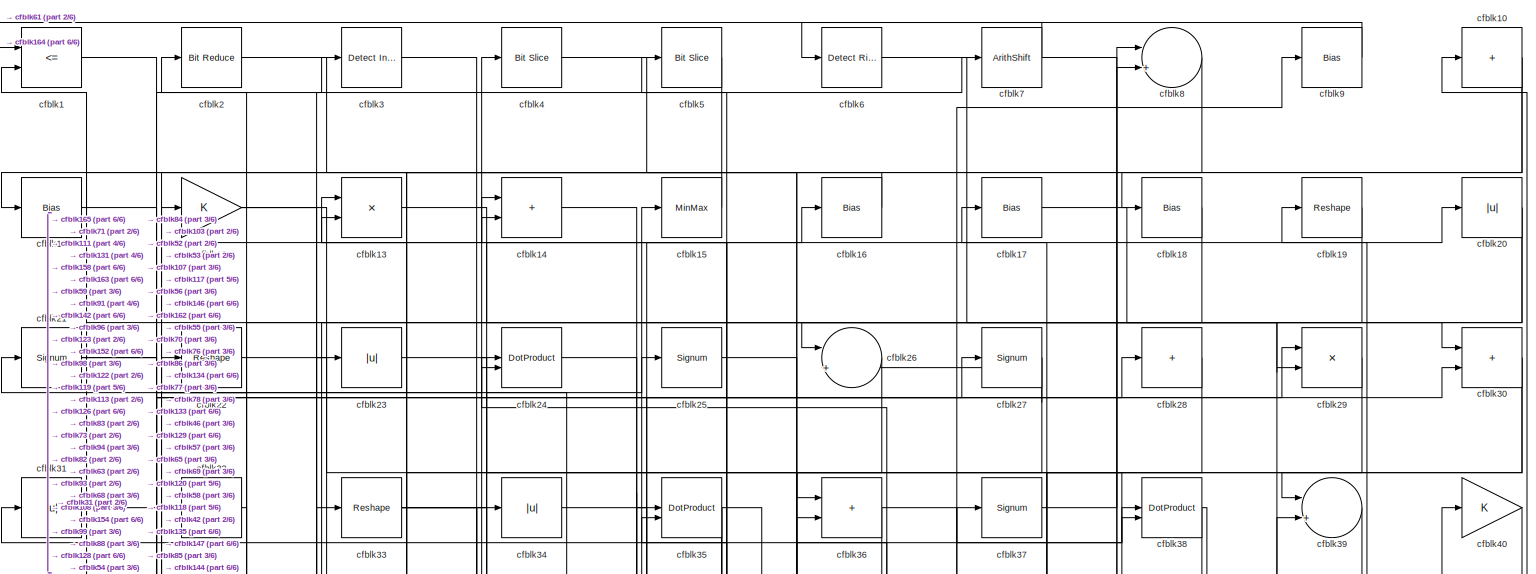
[diagram: root canvas - part 1/6, full width, top band]
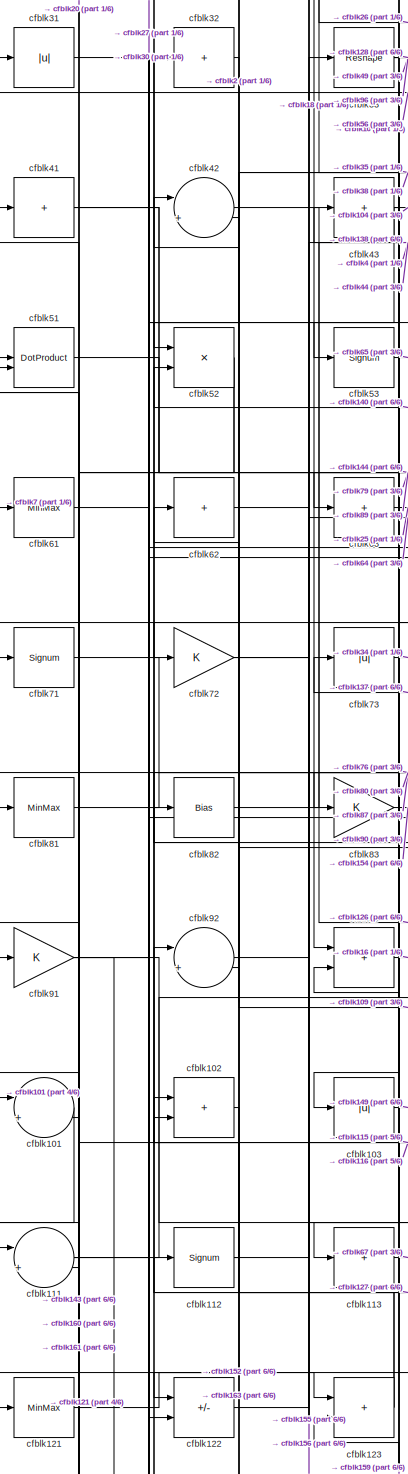
[diagram: root canvas - part 2/6, middle left region]
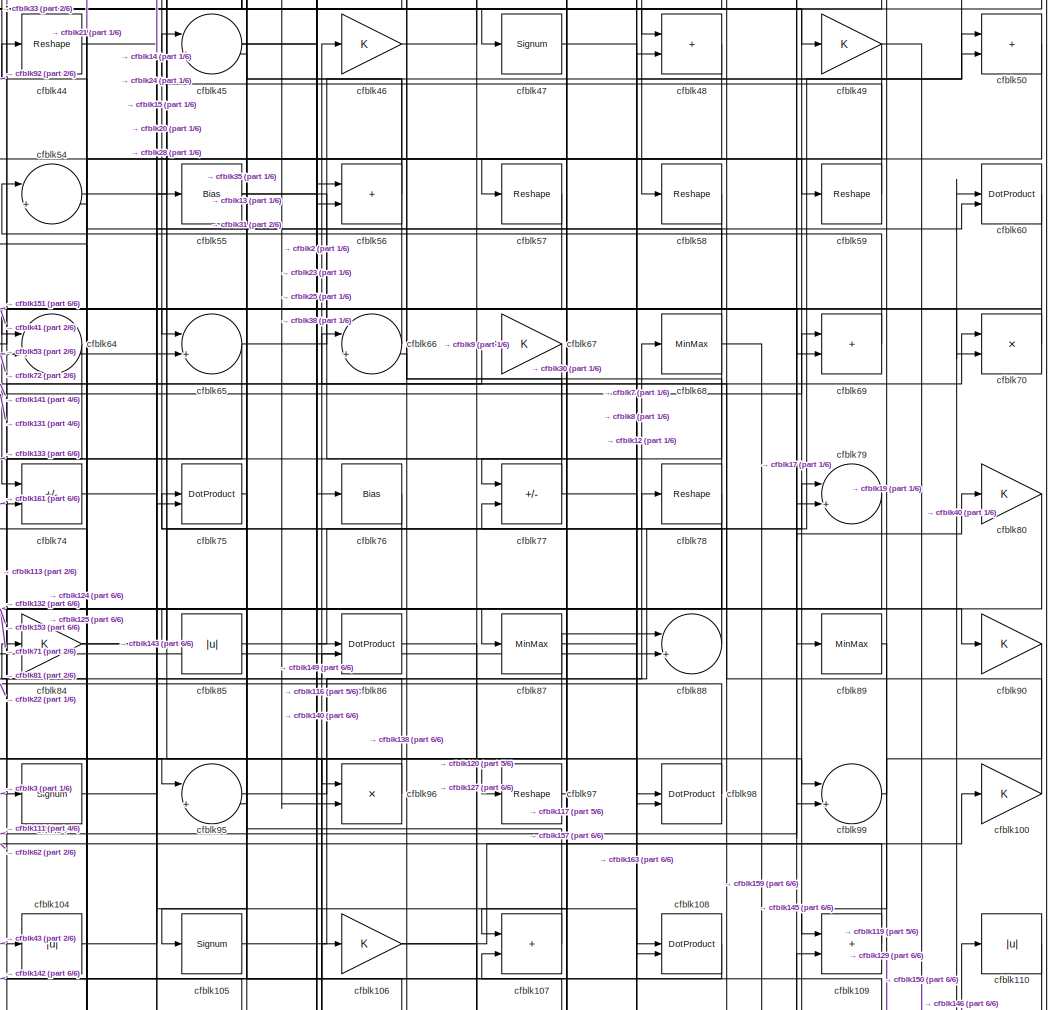
[diagram: root canvas - part 3/6, central region]
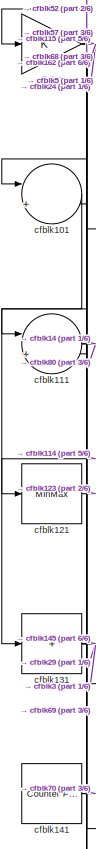
[diagram: root canvas - part 4/6, bottom left region]
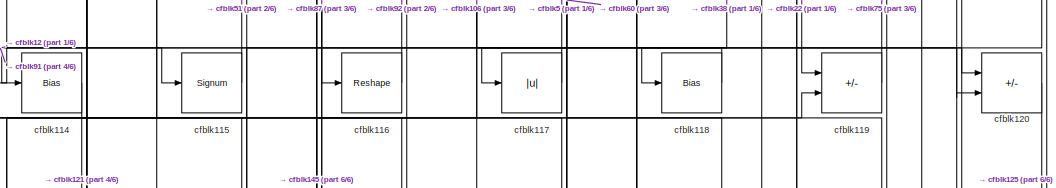
[diagram: root canvas - part 5/6, bottom center region]
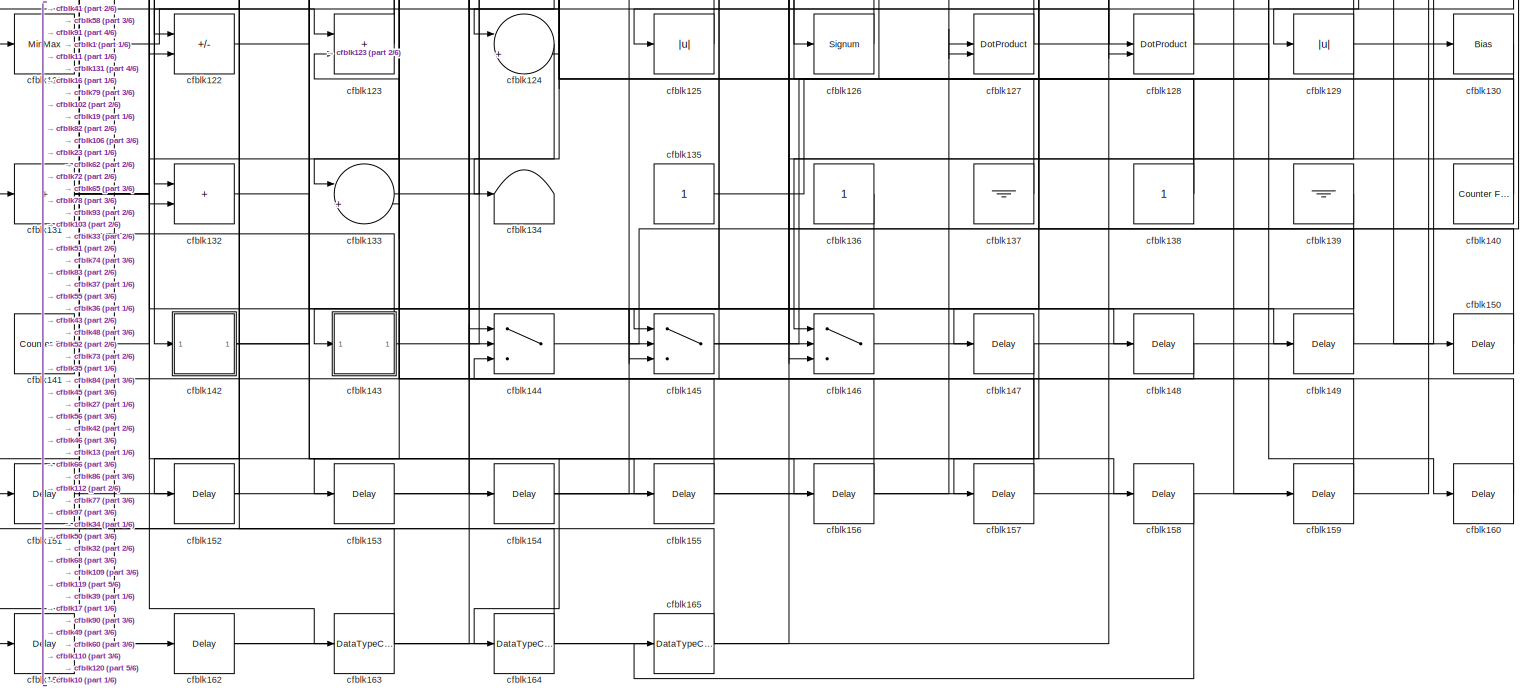
[diagram: root canvas - part 6/6, full width, bottom band]
MODEL slx_d14c1a93ffaf
KIND model
CONFIG AbsTol = auto
CONFIG EnableMultiTasking = off
CONFIG FixedStep = auto
CONFIG MaxStep = auto
CONFIG MinStep = auto
CONFIG RelTol = 1e-3
CONFIG SampleTimeConstraint = Unconstrained
CONFIG SolverName = VariableStepAuto
CONFIG StartTime = 0.0
CONFIG StopTime = 10.0
BLOCK [RelationalOperator] cfblk1
  InputSameDT = off
  Operator = <=
  OutDataTypeStr = boolean
BLOCK [Sum] cfblk10
  IconShape = rectangular
  Inputs = +
BLOCK [Gain] cfblk100
BLOCK [Sum] cfblk101
  Inputs = |++
BLOCK [Sum] cfblk102
  IconShape = rectangular
BLOCK [Abs] cfblk103
  SaturateOnIntegerOverflow = off
BLOCK [Abs] cfblk104
  SaturateOnIntegerOverflow = off
BLOCK [Signum] cfblk105
BLOCK [Gain] cfblk106
BLOCK [Sum] cfblk107
  IconShape = rectangular
BLOCK [DotProduct] cfblk108
  OutDataTypeStr = Inherit: Inherit via internal rule
BLOCK [Sum] cfblk109
  IconShape = rectangular
BLOCK [Bias] cfblk11
  Bias = 0.0
  SaturateOnIntegerOverflow = off
BLOCK [Abs] cfblk110
  SaturateOnIntegerOverflow = off
BLOCK [Sum] cfblk111
  Inputs = |++
BLOCK [Signum] cfblk112
BLOCK [Sum] cfblk113
  IconShape = rectangular
  Inputs = +
BLOCK [Bias] cfblk114
  Bias = 0.0
  SaturateOnIntegerOverflow = off
BLOCK [Signum] cfblk115
BLOCK [Reshape] cfblk116
BLOCK [Abs] cfblk117
  SaturateOnIntegerOverflow = off
BLOCK [Bias] cfblk118
  Bias = 0.0
  SaturateOnIntegerOverflow = off
BLOCK [Sum] cfblk119
  IconShape = rectangular
  Inputs = +-
BLOCK [Gain] cfblk12
BLOCK [Sum] cfblk120
  IconShape = rectangular
  Inputs = +-
BLOCK [MinMax] cfblk121
BLOCK [Sum] cfblk122
  IconShape = rectangular
  Inputs = +-
BLOCK [Sum] cfblk123
  IconShape = rectangular
BLOCK [Sum] cfblk124
  Inputs = |++
BLOCK [Abs] cfblk125
  SaturateOnIntegerOverflow = off
BLOCK [Signum] cfblk126
BLOCK [DotProduct] cfblk127
  OutDataTypeStr = Inherit: Inherit via internal rule
BLOCK [DotProduct] cfblk128
  OutDataTypeStr = Inherit: Inherit via internal rule
BLOCK [Abs] cfblk129
  SaturateOnIntegerOverflow = off
BLOCK [Product] cfblk13
  Inputs = */
  RndMeth = Zero
  SaturateOnIntegerOverflow = on
BLOCK [Bias] cfblk130
  Bias = 0.0
  SaturateOnIntegerOverflow = off
BLOCK [Sum] cfblk131
  IconShape = rectangular
  Inputs = +
BLOCK [Sum] cfblk132
  IconShape = rectangular
BLOCK [Sum] cfblk133
  Inputs = |++
BLOCK [Terminator] cfblk134
BLOCK [Constant] cfblk135
  SampleTime = -1
BLOCK [Constant] cfblk136
  SampleTime = -1
BLOCK [Ground] cfblk137
BLOCK [Constant] cfblk138
  SampleTime = -1
BLOCK [Ground] cfblk139
BLOCK [Sum] cfblk14
  IconShape = rectangular
BLOCK [Reference] cfblk140  REF=hdlsllib/Sources/Counter
Free-Running
  SourceBlock = hdlsllib/Sources/Counter\nFree-Running
  SourceType = Counter Free-Running
BLOCK [Reference] cfblk141  REF=hdlsllib/Sources/Counter
Free-Running
  SourceBlock = hdlsllib/Sources/Counter\nFree-Running
  SourceType = Counter Free-Running
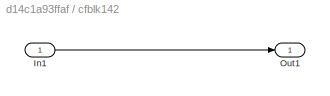
BLOCK [SubSystem] cfblk142
  LibrarySourceBlock = hdlsllib/Ports &\nSubsystems/Subsystem
BLOCK [Inport] cfblk142/In1
BLOCK [Outport] cfblk142/Out1
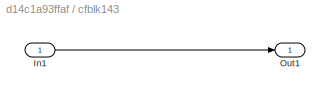
BLOCK [SubSystem] cfblk143
  LibrarySourceBlock = hdlsllib/Ports &\nSubsystems/Subsystem
BLOCK [Inport] cfblk143/In1
BLOCK [Outport] cfblk143/Out1
BLOCK [Switch] cfblk144
  InputSameDT = off
  SaturateOnIntegerOverflow = off
BLOCK [Switch] cfblk145
  InputSameDT = off
  SaturateOnIntegerOverflow = off
BLOCK [Switch] cfblk146
  InputSameDT = off
  SaturateOnIntegerOverflow = off
BLOCK [Delay] cfblk147
  InputPortMap = u0
  SampleTime = 1
BLOCK [Delay] cfblk148
  InputPortMap = u0
  SampleTime = 1
BLOCK [Delay] cfblk149
  InputPortMap = u0
  SampleTime = 1
BLOCK [MinMax] cfblk15
BLOCK [Delay] cfblk150
  InputPortMap = u0
  SampleTime = 1
BLOCK [Delay] cfblk151
  InputPortMap = u0
  SampleTime = 1
BLOCK [Delay] cfblk152
  InputPortMap = u0
  SampleTime = 1
BLOCK [Delay] cfblk153
  InputPortMap = u0
  SampleTime = 1
BLOCK [Delay] cfblk154
  InputPortMap = u0
  SampleTime = 1
BLOCK [Delay] cfblk155
  InputPortMap = u0
  SampleTime = 1
BLOCK [Delay] cfblk156
  InputPortMap = u0
  SampleTime = 1
BLOCK [Delay] cfblk157
  InputPortMap = u0
  SampleTime = 1
BLOCK [Delay] cfblk158
  InputPortMap = u0
  SampleTime = 1
BLOCK [Delay] cfblk159
  InputPortMap = u0
  SampleTime = 1
BLOCK [Bias] cfblk16
  Bias = 0.0
  SaturateOnIntegerOverflow = off
BLOCK [Delay] cfblk160
  InputPortMap = u0
  SampleTime = 1
BLOCK [Delay] cfblk161
  InputPortMap = u0
  SampleTime = 1
BLOCK [Delay] cfblk162
  InputPortMap = u0
  SampleTime = 1
BLOCK [DataTypeConversion] cfblk163
  RndMeth = Floor
  SaturateOnIntegerOverflow = off
BLOCK [DataTypeConversion] cfblk164
  OutDataTypeStr = uint8
  RndMeth = Floor
  SaturateOnIntegerOverflow = off
BLOCK [DataTypeConversion] cfblk165
  OutDataTypeStr = uint8
  RndMeth = Floor
  SaturateOnIntegerOverflow = off
BLOCK [Bias] cfblk17
  Bias = 0.0
  SaturateOnIntegerOverflow = off
BLOCK [Bias] cfblk18
  Bias = 0.0
  SaturateOnIntegerOverflow = off
BLOCK [Reshape] cfblk19
BLOCK [Reference] cfblk2  REF=hdlsllib/Logic and Bit
Operations/Bit Reduce
  SourceBlock = hdlsllib/Logic and Bit\nOperations/Bit Reduce
  SourceType = Bit Reduce
BLOCK [Abs] cfblk20
  SaturateOnIntegerOverflow = off
BLOCK [Signum] cfblk21
BLOCK [Reshape] cfblk22
BLOCK [Abs] cfblk23
  SaturateOnIntegerOverflow = off
BLOCK [DotProduct] cfblk24
  OutDataTypeStr = Inherit: Inherit via internal rule
BLOCK [Signum] cfblk25
BLOCK [Sum] cfblk26
  Inputs = |++
BLOCK [Signum] cfblk27
BLOCK [Sum] cfblk28
  IconShape = rectangular
  Inputs = +
BLOCK [Product] cfblk29
  Inputs = */
  RndMeth = Zero
  SaturateOnIntegerOverflow = on
BLOCK [Reference] cfblk3  REF=simulink/Logic and Bit
Operations/Detect
Increase
  LibrarySourceBlock = hdlsllib/Logic and Bit\nOperations/Detect\nIncrease
  SourceBlock = simulink/Logic and Bit\nOperations/Detect\nIncrease
  SourceType = Detect Increase
BLOCK [Sum] cfblk30
  IconShape = rectangular
BLOCK [Abs] cfblk31
  SaturateOnIntegerOverflow = off
BLOCK [Sum] cfblk32
  IconShape = rectangular
  Inputs = +
BLOCK [Reshape] cfblk33
BLOCK [Abs] cfblk34
  SaturateOnIntegerOverflow = off
BLOCK [DotProduct] cfblk35
  OutDataTypeStr = Inherit: Inherit via internal rule
BLOCK [Sum] cfblk36
  IconShape = rectangular
BLOCK [Signum] cfblk37
BLOCK [DotProduct] cfblk38
  OutDataTypeStr = Inherit: Inherit via internal rule
BLOCK [Sum] cfblk39
  Inputs = |++
BLOCK [Reference] cfblk4  REF=hdlsllib/Logic and Bit
Operations/Bit Slice
  SourceBlock = hdlsllib/Logic and Bit\nOperations/Bit Slice
  SourceType = Bit Slice
BLOCK [Gain] cfblk40
BLOCK [Sum] cfblk41
  IconShape = rectangular
  Inputs = +
BLOCK [Sum] cfblk42
  Inputs = |++
BLOCK [Sum] cfblk43
  IconShape = rectangular
  Inputs = +
BLOCK [Reshape] cfblk44
BLOCK [Sum] cfblk45
  Inputs = |++
BLOCK [Gain] cfblk46
BLOCK [Signum] cfblk47
BLOCK [Sum] cfblk48
  IconShape = rectangular
BLOCK [Gain] cfblk49
BLOCK [Reference] cfblk5  REF=hdlsllib/Logic and Bit
Operations/Bit Slice
  SourceBlock = hdlsllib/Logic and Bit\nOperations/Bit Slice
  SourceType = Bit Slice
BLOCK [Sum] cfblk50
  IconShape = rectangular
BLOCK [DotProduct] cfblk51
  OutDataTypeStr = Inherit: Inherit via internal rule
BLOCK [Product] cfblk52
  Inputs = */
  RndMeth = Zero
  SaturateOnIntegerOverflow = on
BLOCK [Signum] cfblk53
BLOCK [Sum] cfblk54
  Inputs = |++
BLOCK [Bias] cfblk55
  Bias = 0.0
  SaturateOnIntegerOverflow = off
BLOCK [Sum] cfblk56
  IconShape = rectangular
BLOCK [Reshape] cfblk57
BLOCK [Reshape] cfblk58
BLOCK [Reshape] cfblk59
BLOCK [Reference] cfblk6  REF=hdlsllib/Logic and Bit
Operations/Detect Rise
Positive
  SourceBlock = hdlsllib/Logic and Bit\nOperations/Detect Rise\nPositive
  SourceType = Detect Rise Positive
BLOCK [DotProduct] cfblk60
  OutDataTypeStr = Inherit: Inherit via internal rule
BLOCK [MinMax] cfblk61
BLOCK [Sum] cfblk62
  IconShape = rectangular
  Inputs = +
BLOCK [Sum] cfblk63
  IconShape = rectangular
  Inputs = +
BLOCK [Sum] cfblk64
  Inputs = |++
BLOCK [Sum] cfblk65
  Inputs = |++
BLOCK [Sum] cfblk66
  Inputs = |++
BLOCK [Gain] cfblk67
BLOCK [MinMax] cfblk68
BLOCK [Sum] cfblk69
  IconShape = rectangular
BLOCK [ArithShift] cfblk7
  BitShiftNumber = 8
  InputPortMap = u0
BLOCK [Product] cfblk70
  Inputs = */
  RndMeth = Zero
  SaturateOnIntegerOverflow = on
BLOCK [Signum] cfblk71
BLOCK [Gain] cfblk72
BLOCK [Abs] cfblk73
  SaturateOnIntegerOverflow = off
BLOCK [Sum] cfblk74
  IconShape = rectangular
  Inputs = +-
BLOCK [DotProduct] cfblk75
  OutDataTypeStr = Inherit: Inherit via internal rule
BLOCK [Bias] cfblk76
  Bias = 0.0
  SaturateOnIntegerOverflow = off
BLOCK [Sum] cfblk77
  IconShape = rectangular
  Inputs = +-
BLOCK [Reshape] cfblk78
BLOCK [Sum] cfblk79
  Inputs = |++
BLOCK [Sum] cfblk8
  Inputs = |++
BLOCK [Gain] cfblk80
BLOCK [MinMax] cfblk81
BLOCK [Bias] cfblk82
  Bias = 0.0
  SaturateOnIntegerOverflow = off
BLOCK [Gain] cfblk83
BLOCK [Gain] cfblk84
BLOCK [Abs] cfblk85
  SaturateOnIntegerOverflow = off
BLOCK [DotProduct] cfblk86
  OutDataTypeStr = Inherit: Inherit via internal rule
BLOCK [MinMax] cfblk87
BLOCK [Sum] cfblk88
  Inputs = |++
BLOCK [MinMax] cfblk89
BLOCK [Bias] cfblk9
  Bias = 0.0
  SaturateOnIntegerOverflow = off
BLOCK [Gain] cfblk90
BLOCK [Gain] cfblk91
BLOCK [Sum] cfblk92
  Inputs = |++
BLOCK [Sum] cfblk93
  IconShape = rectangular
BLOCK [Signum] cfblk94
BLOCK [Sum] cfblk95
  Inputs = |++
BLOCK [Product] cfblk96
  Inputs = */
  RndMeth = Zero
  SaturateOnIntegerOverflow = on
BLOCK [Reshape] cfblk97
BLOCK [DotProduct] cfblk98
  OutDataTypeStr = Inherit: Inherit via internal rule
BLOCK [Sum] cfblk99
  Inputs = |++
LINE cfblk100:1 -> cfblk66:1
LINE cfblk101:1 -> cfblk131:1
LINE cfblk102:1 -> cfblk122:1
LINE cfblk103:1 -> cfblk149:1
LINE cfblk104:1 -> cfblk75:2
LINE cfblk105:1 -> cfblk79:1
NET cfblk106:1 -> cfblk100:1, cfblk120:1
LINE cfblk107:1 -> cfblk13:1
LINE cfblk108:1 -> cfblk107:2
LINE cfblk109:1 -> cfblk62:1
NET cfblk10:1 -> cfblk113:1, cfblk133:1
LINE cfblk110:1 -> cfblk145:1
NET cfblk111:1 -> cfblk14:2, cfblk80:1
NET cfblk112:1 -> cfblk33:1, cfblk42:1
LINE cfblk113:1 -> cfblk67:1
LINE cfblk114:1 -> cfblk121:1
LINE cfblk115:1 -> cfblk51:1
LINE cfblk116:1 -> cfblk92:1
LINE cfblk117:1 -> cfblk5:1
LINE cfblk118:1 -> cfblk114:1
LINE cfblk119:1 -> cfblk75:1
LINE cfblk11:1 -> cfblk158:1
LINE cfblk120:1 -> cfblk125:1
LINE cfblk121:1 -> cfblk123:1
LINE cfblk122:1 -> cfblk7:1
NET cfblk123:1 -> cfblk102:1, cfblk2:1
LINE cfblk124:1 -> cfblk132:2
LINE cfblk125:1 -> cfblk84:1
LINE cfblk126:1 -> cfblk13:2
NET cfblk127:1 -> cfblk112:1, cfblk50:1
NET cfblk128:1 -> cfblk160:1, cfblk32:1
NET cfblk129:1 -> cfblk130:1, cfblk146:2, cfblk17:1
NET cfblk12:1 -> cfblk120:2, cfblk58:1
LINE cfblk130:1 -> cfblk146:1
NET cfblk131:1 -> cfblk145:3, cfblk29:1, cfblk3:1, cfblk69:1
LINE cfblk132:1 -> cfblk148:1
LINE cfblk133:1 -> cfblk37:1
LINE cfblk135:1 -> cfblk39:2
LINE cfblk136:1 -> cfblk145:2
LINE cfblk137:1 -> cfblk73:1
NET cfblk138:1 -> cfblk43:1, cfblk66:2
LINE cfblk139:1 -> cfblk143:1
LINE cfblk13:1 -> cfblk29:2
NET cfblk140:1 -> cfblk46:1, cfblk52:2
NET cfblk141:1 -> cfblk101:2, cfblk70:1
LINE cfblk142/In1:1 -> cfblk142/Out1:1
NET cfblk142:1 -> cfblk106:1, cfblk23:1
LINE cfblk143/In1:1 -> cfblk143/Out1:1
NET cfblk143:1 -> cfblk41:1, cfblk55:1
LINE cfblk144:1 -> cfblk10:1
NET cfblk145:1 -> cfblk109:2, cfblk119:2
LINE cfblk146:1 -> cfblk110:1
LINE cfblk147:1 -> cfblk164:1
LINE cfblk148:1 -> cfblk144:3
LINE cfblk149:1 -> cfblk56:1
LINE cfblk14:1 -> cfblk99:1
LINE cfblk150:1 -> cfblk77:2
LINE cfblk151:1 -> cfblk127:1
LINE cfblk152:1 -> cfblk102:2
LINE cfblk153:1 -> cfblk60:1
LINE cfblk154:1 -> cfblk35:1
LINE cfblk155:1 -> cfblk144:1
LINE cfblk156:1 -> cfblk93:2
LINE cfblk157:1 -> cfblk45:2
LINE cfblk158:1 -> cfblk165:1
LINE cfblk159:1 -> cfblk123:2
LINE cfblk15:1 -> cfblk11:1
LINE cfblk160:1 -> cfblk51:2
LINE cfblk161:1 -> cfblk74:2
LINE cfblk162:1 -> cfblk36:2
NET cfblk163:1 -> cfblk48:2, cfblk82:1
LINE cfblk164:1 -> cfblk1:1
LINE cfblk165:1 -> cfblk1:2
LINE cfblk16:1 -> cfblk142:1
LINE cfblk17:1 -> cfblk99:2
LINE cfblk18:1 -> cfblk93:1
LINE cfblk19:1 -> cfblk152:1
LINE cfblk1:1 -> cfblk163:1
NET cfblk20:1 -> cfblk26:1, cfblk71:1
NET cfblk21:1 -> cfblk59:1, cfblk88:2
LINE cfblk22:1 -> cfblk119:1
LINE cfblk23:1 -> cfblk86:1
LINE cfblk24:1 -> cfblk108:2
LINE cfblk25:1 -> cfblk70:2
LINE cfblk26:1 -> cfblk83:1
NET cfblk27:1 -> cfblk146:3, cfblk26:2
LINE cfblk28:1 -> cfblk57:1
LINE cfblk29:1 -> cfblk39:1
LINE cfblk2:1 -> cfblk76:1
NET cfblk30:1 -> cfblk107:1, cfblk56:2
LINE cfblk31:1 -> cfblk27:1
LINE cfblk32:1 -> cfblk72:1
NET cfblk33:1 -> cfblk128:2, cfblk49:1, cfblk96:1
LINE cfblk34:1 -> cfblk128:1
NET cfblk35:1 -> cfblk103:1, cfblk52:1, cfblk53:1, cfblk96:2
NET cfblk36:1 -> cfblk134:1, cfblk38:2
LINE cfblk37:1 -> cfblk8:2
NET cfblk38:1 -> cfblk118:1, cfblk42:2
LINE cfblk39:1 -> cfblk147:1
LINE cfblk3:1 -> cfblk94:1
LINE cfblk40:1 -> cfblk54:2
NET cfblk41:1 -> cfblk79:2, cfblk89:1
LINE cfblk42:1 -> cfblk126:1
NET cfblk43:1 -> cfblk104:1, cfblk122:2, cfblk63:1
LINE cfblk44:1 -> cfblk47:1
NET cfblk45:1 -> cfblk48:1, cfblk97:1
LINE cfblk46:1 -> cfblk9:1
LINE cfblk47:1 -> cfblk98:1
LINE cfblk48:1 -> cfblk124:1
NET cfblk49:1 -> cfblk124:2, cfblk150:1
LINE cfblk4:1 -> cfblk36:1
LINE cfblk50:1 -> cfblk95:2
LINE cfblk51:1 -> cfblk144:2
NET cfblk52:1 -> cfblk101:1, cfblk161:1
LINE cfblk53:1 -> cfblk65:2
LINE cfblk54:1 -> cfblk20:1
NET cfblk55:1 -> cfblk108:1, cfblk38:1
NET cfblk56:1 -> cfblk14:1, cfblk31:1, cfblk74:1
LINE cfblk57:1 -> cfblk111:1
LINE cfblk58:1 -> cfblk151:1
LINE cfblk59:1 -> cfblk45:1
LINE cfblk5:1 -> cfblk91:1
LINE cfblk60:1 -> cfblk117:1
LINE cfblk61:1 -> cfblk30:2
LINE cfblk62:1 -> cfblk155:1
LINE cfblk63:1 -> cfblk25:1
LINE cfblk64:1 -> cfblk95:1
NET cfblk65:1 -> cfblk133:2, cfblk8:1
LINE cfblk66:1 -> cfblk64:1
LINE cfblk67:1 -> cfblk77:1
NET cfblk68:1 -> cfblk111:2, cfblk159:1, cfblk21:1
LINE cfblk69:1 -> cfblk54:1
LINE cfblk6:1 -> cfblk30:1
LINE cfblk70:1 -> cfblk65:1
LINE cfblk71:1 -> cfblk90:1
NET cfblk72:1 -> cfblk156:1, cfblk64:2
LINE cfblk73:1 -> cfblk34:1
LINE cfblk74:1 -> cfblk60:2
LINE cfblk75:1 -> cfblk105:1
LINE cfblk76:1 -> cfblk81:1
NET cfblk77:1 -> cfblk35:2, cfblk98:2
NET cfblk78:1 -> cfblk153:1, cfblk24:2, cfblk85:1
LINE cfblk79:1 -> cfblk132:1
NET cfblk7:1 -> cfblk61:1, cfblk69:2
LINE cfblk80:1 -> cfblk92:2
LINE cfblk81:1 -> cfblk87:1
LINE cfblk82:1 -> cfblk4:1
LINE cfblk83:1 -> cfblk154:1
NET cfblk84:1 -> cfblk28:1, cfblk78:1
LINE cfblk85:1 -> cfblk40:1
LINE cfblk86:1 -> cfblk127:2
NET cfblk87:1 -> cfblk116:1, cfblk50:2, cfblk88:1
LINE cfblk88:1 -> cfblk15:1
LINE cfblk89:1 -> cfblk109:1
LINE cfblk8:1 -> cfblk18:1
LINE cfblk90:1 -> cfblk129:1
NET cfblk91:1 -> cfblk115:1, cfblk162:1, cfblk24:1
LINE cfblk92:1 -> cfblk44:1
LINE cfblk93:1 -> cfblk16:1
LINE cfblk94:1 -> cfblk86:2
LINE cfblk95:1 -> cfblk68:1
LINE cfblk96:1 -> cfblk12:1
LINE cfblk97:1 -> cfblk157:1
LINE cfblk98:1 -> cfblk22:1
LINE cfblk99:1 -> cfblk19:1
LINE cfblk9:1 -> cfblk6:1
note: NET lines group one-source signal fan-out (src -> all destinations, sorted); 1:1 wires keep LINE
